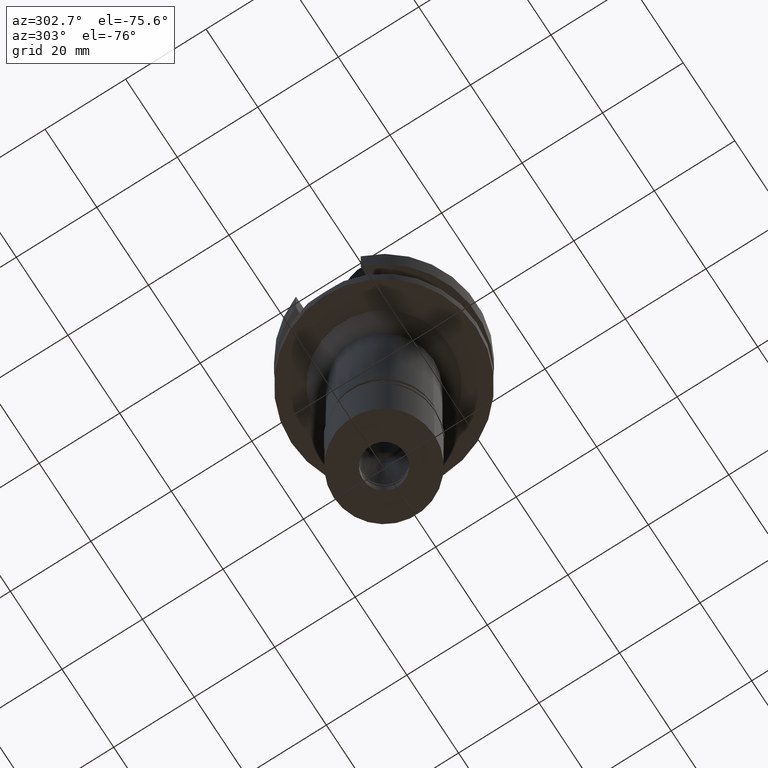
[diagram: clean part render]
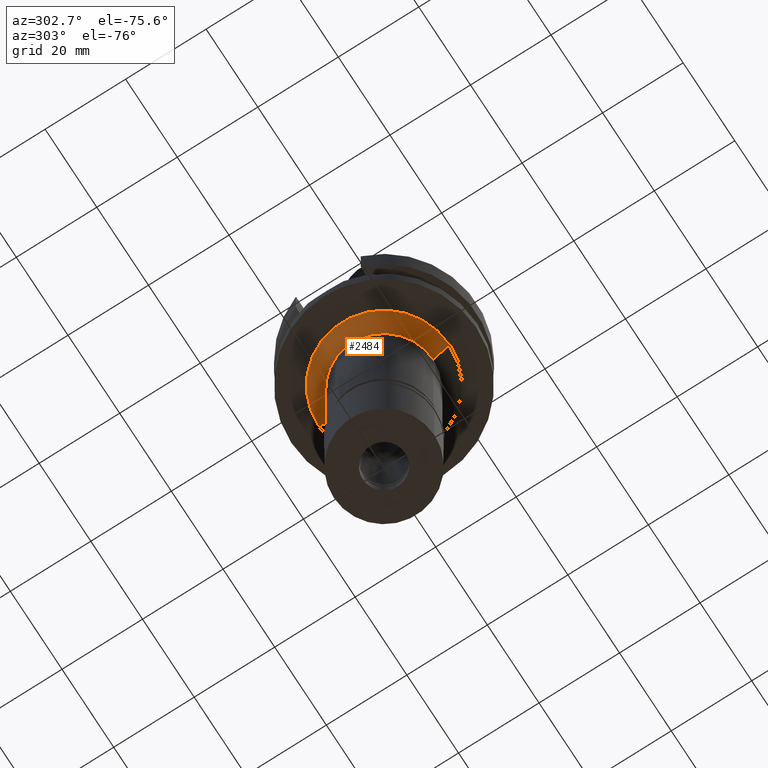
[diagram: same view with one face highlighted and labeled with its STEP entity id]
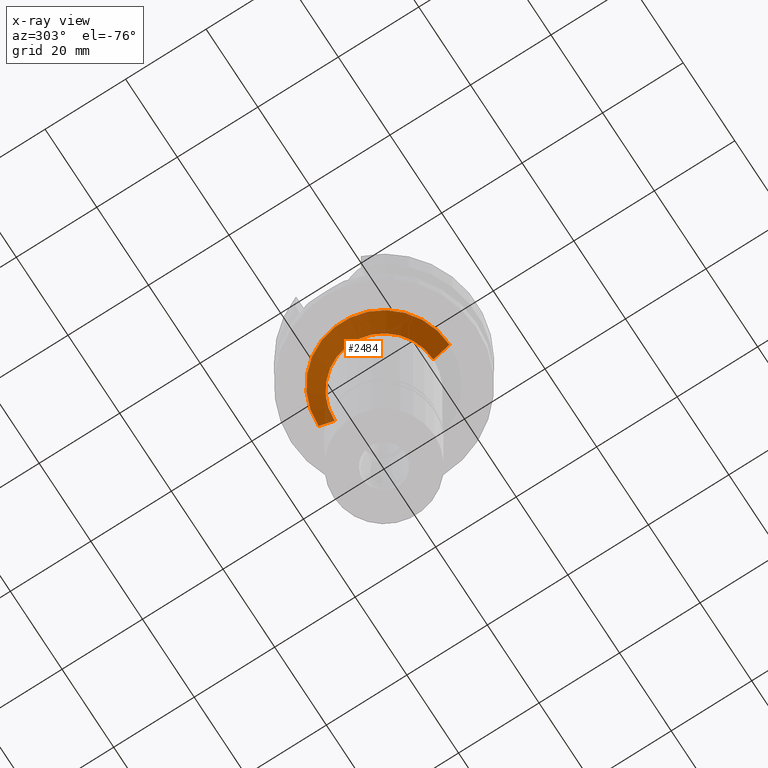
[diagram: x-ray of the same camera — body ghosted, the highlighted face saturated]
A machine part, auxiliary view. The second image highlights one B-rep face of the part: STEP entity #2484.
The next image is the same camera in x-ray: the body ghosted, the highlighted face saturated — about 2% of this face is hidden behind the body in this view.
In plain terms, the highlighted conical surface has half-angle 45 deg.
Its self-contained STEP definition (entity closure, byte-faithful):
#270 = CARTESIAN_POINT ( 'NONE',  ( 0.0000000000000000000, 16.25000000000000000, -22.00000000000000000 ) ) ;
#278 = EDGE_CURVE ( 'NONE', #484, #647, #2495, .T. ) ;
#386 = DIRECTION ( 'NONE',  ( 0.0000000000000000000, -1.000000000000000000, 0.0000000000000000000 ) ) ;
#484 = VERTEX_POINT ( 'NONE', #1460 ) ;
#535 = DIRECTION ( 'NONE',  ( 0.0000000000000000000, 0.0000000000000000000, -1.000000000000000000 ) ) ;
#567 = EDGE_CURVE ( 'NONE', #2708, #2026, #1642, .T. ) ;
#632 = DIRECTION ( 'NONE',  ( 0.0000000000000000000, 0.0000000000000000000, -1.000000000000000000 ) ) ;
#647 = VERTEX_POINT ( 'NONE', #1660 ) ;
#754 = VECTOR ( 'NONE', #2290, 1000.000000000000000 ) ;
#890 = CARTESIAN_POINT ( 'NONE',  ( 0.0000000000000000000, -16.25000000000000000, -22.00000000000000000 ) ) ;
#905 = AXIS2_PLACEMENT_3D ( 'NONE', #2562, #2848, #2594 ) ;
#1029 = ORIENTED_EDGE ( 'NONE', *, *, #2253, .T. ) ;
#1060 = CARTESIAN_POINT ( 'NONE',  ( 0.0000000000000000000, 0.0000000000000000000, -22.00000000000000000 ) ) ;
#1175 = ORIENTED_EDGE ( 'NONE', *, *, #567, .T. ) ;
#1444 = CARTESIAN_POINT ( 'NONE',  ( 0.0000000000000000000, 16.25000000000000000, -22.00000000000000000 ) ) ;
#1445 = EDGE_LOOP ( 'NONE', ( #2301, #2001, #1029, #1175 ) ) ;
#1460 = CARTESIAN_POINT ( 'NONE',  ( 0.0000000000000000000, -16.25000000000000000, -22.00000000000000000 ) ) ;
#1546 = AXIS2_PLACEMENT_3D ( 'NONE', #1943, #535, #2923 ) ;
#1642 = LINE ( 'NONE', #1444, #2061 ) ;
#1660 = CARTESIAN_POINT ( 'NONE',  ( 0.0000000000000000000, -12.25000000000000000, -26.00000000000000000 ) ) ;
#1749 = AXIS2_PLACEMENT_3D ( 'NONE', #1060, #632, #386 ) ;
#1841 = CONICAL_SURFACE ( 'NONE', #905, 14.25000000000000000, 0.7853981633972997312 ) ;
#1943 = CARTESIAN_POINT ( 'NONE',  ( 0.0000000000000000000, 0.0000000000000000000, -26.00000000000000000 ) ) ;
#2001 = ORIENTED_EDGE ( 'NONE', *, *, #278, .F. ) ;
#2026 = VERTEX_POINT ( 'NONE', #2936 ) ;
#2033 = CIRCLE ( 'NONE', #1749, 16.25000000000000000 ) ;
#2061 = VECTOR ( 'NONE', #2324, 1000.000000000000114 ) ;
#2138 = EDGE_CURVE ( 'NONE', #647, #2026, #2477, .T. ) ;
#2253 = EDGE_CURVE ( 'NONE', #484, #2708, #2033, .T. ) ;
#2290 = DIRECTION ( 'NONE',  ( 0.0000000000000000000, 0.7071067811865969777, -0.7071067811864980568 ) ) ;
#2301 = ORIENTED_EDGE ( 'NONE', *, *, #2138, .F. ) ;
#2324 = DIRECTION ( 'NONE',  ( 0.0000000000000000000, -0.7071067811865474617, -0.7071067811865474617 ) ) ;
#2372 = FACE_OUTER_BOUND ( 'NONE', #1445, .T. ) ;
#2477 = CIRCLE ( 'NONE', #1546, 12.25000000000000000 ) ;
#2484 = ADVANCED_FACE ( 'NONE', ( #2372 ), #1841, .T. ) ;
#2495 = LINE ( 'NONE', #890, #754 ) ;
#2562 = CARTESIAN_POINT ( 'NONE',  ( 0.0000000000000000000, 0.0000000000000000000, -24.00000000000000000 ) ) ;
#2594 = DIRECTION ( 'NONE',  ( 0.0000000000000000000, 1.000000000000000000, 0.0000000000000000000 ) ) ;
#2708 = VERTEX_POINT ( 'NONE', #270 ) ;
#2848 = DIRECTION ( 'NONE',  ( 0.0000000000000000000, 0.0000000000000000000, 1.000000000000000000 ) ) ;
#2923 = DIRECTION ( 'NONE',  ( 0.0000000000000000000, -1.000000000000000000, 0.0000000000000000000 ) ) ;
#2936 = CARTESIAN_POINT ( 'NONE',  ( 0.0000000000000000000, 12.25000000000000000, -26.00000000000000000 ) ) ;